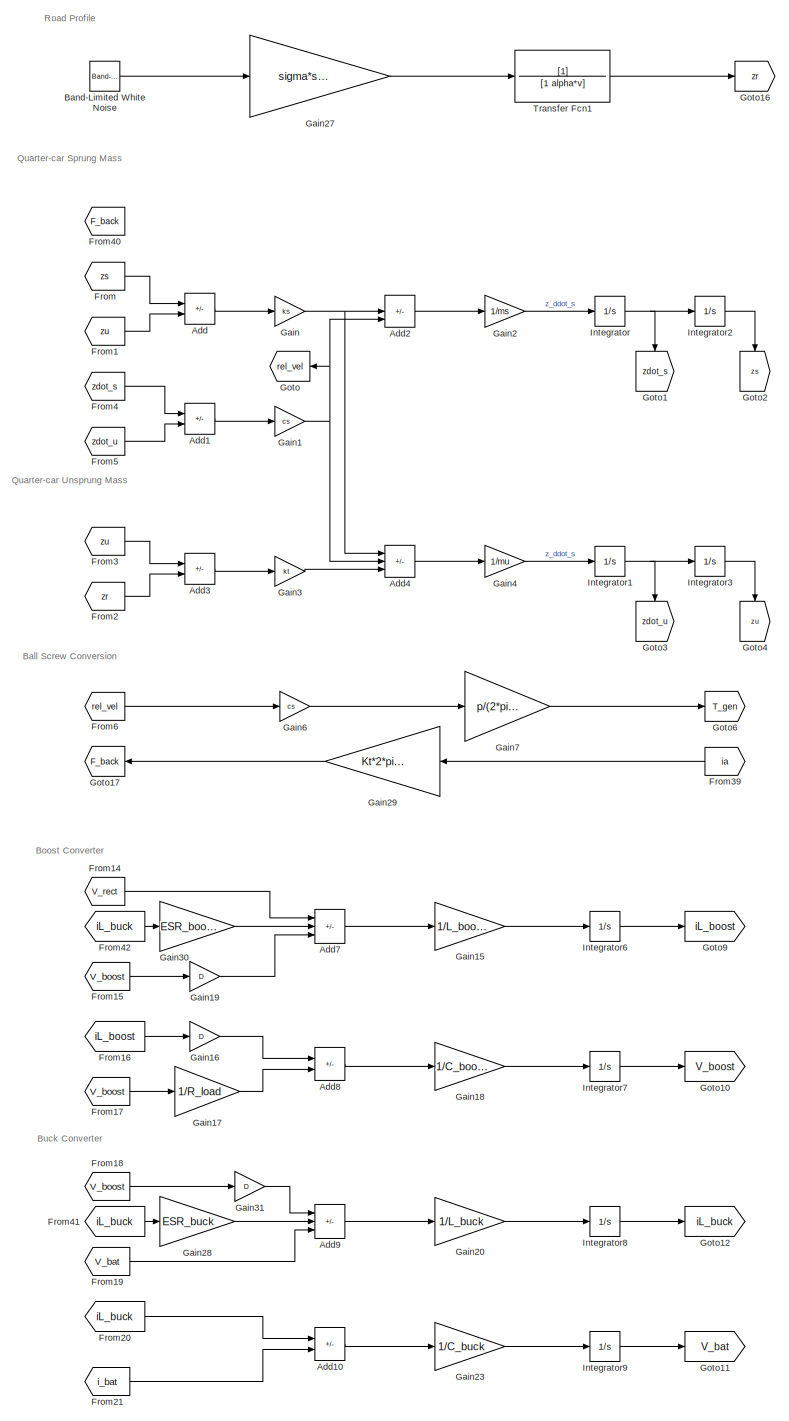
[diagram: root canvas - part 1/3, left side, full height]
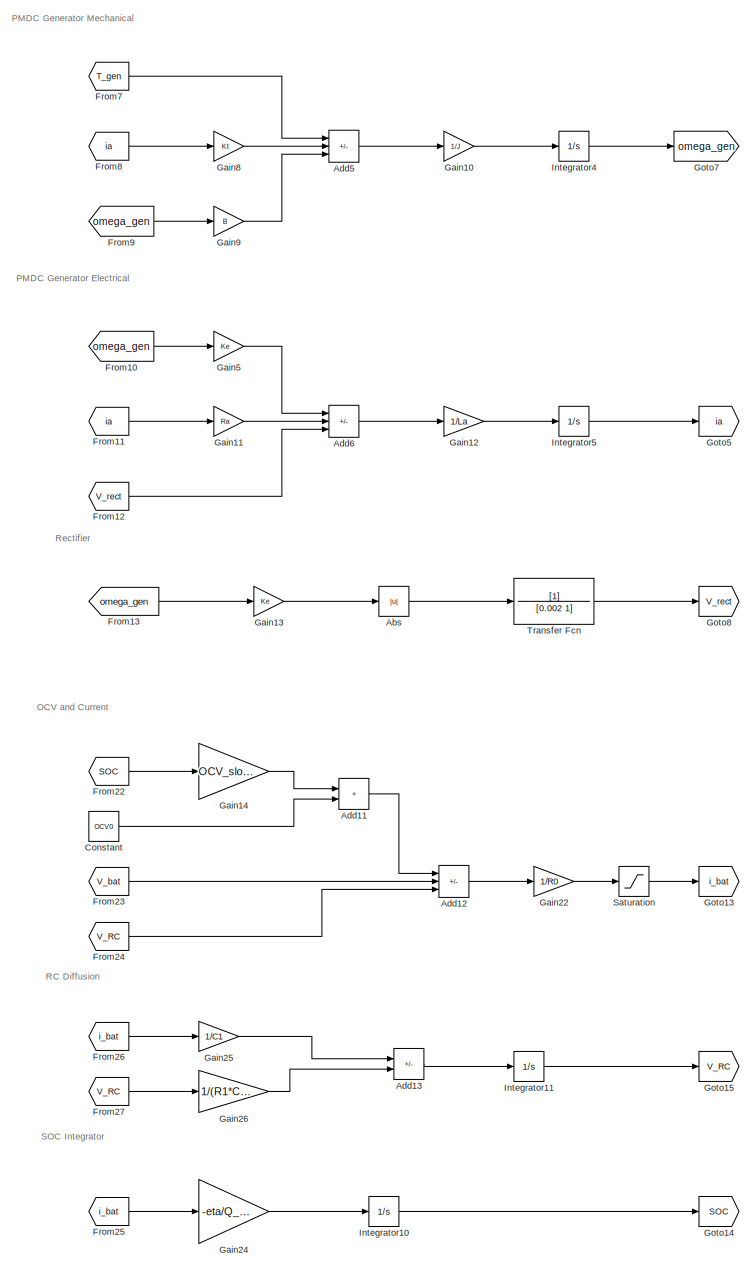
[diagram: root canvas - part 2/3, center side, full height]
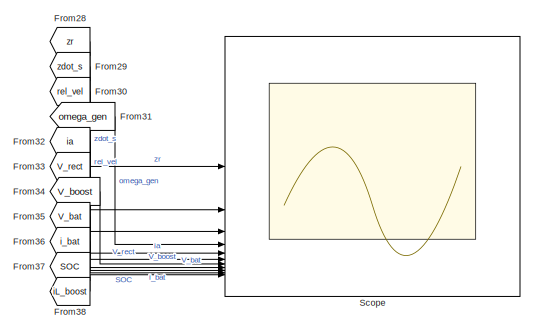
[diagram: root canvas - part 3/3, middle right region]
MODEL slx_e48aad3ebad0
KIND model
CONFIG AbsTol = 1e-6
CONFIG EnableMultiTasking = off
CONFIG FixedStep = auto
CONFIG MaxStep = auto
CONFIG MinStep = auto
CONFIG RelTol = 1e-3
CONFIG SampleTimeConstraint = Unconstrained
CONFIG SolverName = ode23tb
CONFIG StartTime = 0.0
CONFIG StopTime = 10
BLOCK [Abs] Abs
  SaturateOnIntegerOverflow = off
BLOCK [Sum] Add
  IconShape = rectangular
  Inputs = +-
BLOCK [Sum] Add1
  IconShape = rectangular
  Inputs = +-
BLOCK [Sum] Add10
  IconShape = rectangular
  Inputs = +-
BLOCK [Sum] Add11
  IconShape = rectangular
BLOCK [Sum] Add12
  IconShape = rectangular
  Inputs = +--
BLOCK [Sum] Add13
  IconShape = rectangular
  Inputs = +-
BLOCK [Sum] Add2
  IconShape = rectangular
  Inputs = +--
BLOCK [Sum] Add3
  IconShape = rectangular
  Inputs = +-
BLOCK [Sum] Add4
  IconShape = rectangular
  Inputs = ++-
BLOCK [Sum] Add5
  IconShape = rectangular
  Inputs = +--
BLOCK [Sum] Add6
  IconShape = rectangular
  Inputs = +--
BLOCK [Sum] Add7
  IconShape = rectangular
  Inputs = +--
BLOCK [Sum] Add8
  IconShape = rectangular
  Inputs = +-
BLOCK [Sum] Add9
  IconShape = rectangular
  Inputs = +--
BLOCK [Reference] Band-Limited White Noise  REF=simulink/Sources/Band-Limited
White Noise
  SourceBlock = simulink/Sources/Band-Limited\nWhite Noise
  SourceType = Band-Limited White Noise.
BLOCK [Constant] Constant
  Value = OCV0
BLOCK [From] From
  GotoTag = zs
BLOCK [From] From1
  GotoTag = zu
BLOCK [From] From10
  GotoTag = omega_gen
BLOCK [From] From11
  GotoTag = ia
BLOCK [From] From12
  GotoTag = V_rect
BLOCK [From] From13
  GotoTag = omega_gen
BLOCK [From] From14
  GotoTag = V_rect
BLOCK [From] From15
  GotoTag = V_boost
BLOCK [From] From16
  GotoTag = iL_boost
BLOCK [From] From17
  GotoTag = V_boost
BLOCK [From] From18
  GotoTag = V_boost
BLOCK [From] From19
  GotoTag = V_bat
BLOCK [From] From2
  GotoTag = zr
BLOCK [From] From20
  GotoTag = iL_buck
BLOCK [From] From21
  GotoTag = i_bat
BLOCK [From] From22
  GotoTag = SOC
BLOCK [From] From23
  GotoTag = V_bat
BLOCK [From] From24
  GotoTag = V_RC
BLOCK [From] From25
  GotoTag = i_bat
BLOCK [From] From26
  GotoTag = i_bat
BLOCK [From] From27
  GotoTag = V_RC
BLOCK [From] From28
  GotoTag = zr
  IconDisplay = Signal name
BLOCK [From] From29
  GotoTag = zdot_s
BLOCK [From] From3
  GotoTag = zu
BLOCK [From] From30
  GotoTag = rel_vel
BLOCK [From] From31
  GotoTag = omega_gen
BLOCK [From] From32
  GotoTag = ia
BLOCK [From] From33
  GotoTag = V_rect
BLOCK [From] From34
  GotoTag = V_boost
BLOCK [From] From35
  GotoTag = V_bat
BLOCK [From] From36
  GotoTag = i_bat
BLOCK [From] From37
  GotoTag = SOC
BLOCK [From] From38
  GotoTag = iL_boost
BLOCK [From] From39
  GotoTag = ia
  NameLocation = top
BLOCK [From] From4
  GotoTag = zdot_s
BLOCK [From] From40
  GotoTag = F_back
BLOCK [From] From41
  GotoTag = iL_buck
BLOCK [From] From42
  GotoTag = iL_buck
BLOCK [From] From5
  GotoTag = zdot_u
BLOCK [From] From6
  GotoTag = rel_vel
BLOCK [From] From7
  GotoTag = T_gen
BLOCK [From] From8
  GotoTag = ia
BLOCK [From] From9
  GotoTag = omega_gen
BLOCK [Gain] Gain
  Gain = ks
BLOCK [Gain] Gain1
  Gain = cs
BLOCK [Gain] Gain10
  Gain = 1/J
BLOCK [Gain] Gain11
  Gain = Ra
BLOCK [Gain] Gain12
  Gain = 1/La
BLOCK [Gain] Gain13
  Gain = Ke
BLOCK [Gain] Gain14
  Gain = OCV_slope
BLOCK [Gain] Gain15
  Gain = 1/L_boost
BLOCK [Gain] Gain16
  Gain = D
BLOCK [Gain] Gain17
  Gain = 1/R_load
BLOCK [Gain] Gain18
  Gain = 1/C_boost
BLOCK [Gain] Gain19
  Gain = D
BLOCK [Gain] Gain2
  Gain = 1/ms
BLOCK [Gain] Gain20
  Gain = 1/L_buck
BLOCK [Gain] Gain22
  Gain = 1/R0
BLOCK [Gain] Gain23
  Gain = 1/C_buck
BLOCK [Gain] Gain24
  Gain = -eta/Q_nom
BLOCK [Gain] Gain25
  Gain = 1/C1
BLOCK [Gain] Gain26
  Gain = 1/(R1*C1)
BLOCK [Gain] Gain27
  Gain = sigma*sqrt(2*alpha*v)
BLOCK [Gain] Gain28
  Gain = ESR_buck
BLOCK [Gain] Gain29
  Gain = Kt*2*pi/(p*eta_bs)
  NameLocation = top
BLOCK [Gain] Gain3
  Gain = kt
BLOCK [Gain] Gain30
  Gain = ESR_boost
BLOCK [Gain] Gain31
  Gain = D
BLOCK [Gain] Gain4
  Gain = 1/mu
BLOCK [Gain] Gain5
  Gain = Ke
BLOCK [Gain] Gain6
  Gain = cs
BLOCK [Gain] Gain7
  Gain = p/(2*pi*eta_bs)
BLOCK [Gain] Gain8
  Gain = Kt
BLOCK [Gain] Gain9
  Gain = B
BLOCK [Goto] Goto
  GotoTag = rel_vel
  NameLocation = top
BLOCK [Goto] Goto1
  GotoTag = zdot_s
  NameLocation = left
BLOCK [Goto] Goto10
  GotoTag = V_boost
BLOCK [Goto] Goto11
  GotoTag = V_bat
BLOCK [Goto] Goto12
  GotoTag = iL_buck
BLOCK [Goto] Goto13
  GotoTag = i_bat
BLOCK [Goto] Goto14
  GotoTag = SOC
BLOCK [Goto] Goto15
  GotoTag = V_RC
BLOCK [Goto] Goto16
  GotoTag = zr
BLOCK [Goto] Goto17
  GotoTag = F_back
  NameLocation = top
BLOCK [Goto] Goto2
  GotoTag = zs
  NameLocation = left
BLOCK [Goto] Goto3
  GotoTag = zdot_u
  NameLocation = left
BLOCK [Goto] Goto4
  GotoTag = zu
  NameLocation = left
BLOCK [Goto] Goto5
  GotoTag = ia
BLOCK [Goto] Goto6
  GotoTag = T_gen
BLOCK [Goto] Goto7
  GotoTag = omega_gen
BLOCK [Goto] Goto8
  GotoTag = V_rect
BLOCK [Goto] Goto9
  GotoTag = iL_boost
BLOCK [Integrator] Integrator
BLOCK [Integrator] Integrator1
BLOCK [Integrator] Integrator10
  InitialCondition = SOC0
  LowerSaturationLimit = 0
  UpperSaturationLimit = 1
BLOCK [Integrator] Integrator11
BLOCK [Integrator] Integrator2
BLOCK [Integrator] Integrator3
BLOCK [Integrator] Integrator4
BLOCK [Integrator] Integrator5
BLOCK [Integrator] Integrator6
BLOCK [Integrator] Integrator7
BLOCK [Integrator] Integrator8
  LowerSaturationLimit = 0
BLOCK [Integrator] Integrator9
  InitialCondition = v_bat_init
  UpperSaturationLimit = 1e9
BLOCK [Saturate] Saturation
  LowerLimit = -10
  UpperLimit = 50
BLOCK [Scope] Scope
  ActiveDisplayString = 9
  ActiveDisplayYMaximum = 57.5
  ActiveDisplayYMinimum = -17.5
  Floating = off
  GraphicalSettings = {"Style":{"BackgroundColor":[0.12941176470588237,0.12941176470588237,0.12941176470588237],"AxesColor":[0.07058823529411765,0.07058823529411765,0.07058823529411765],"LabelsColor":[0.8509803921568627,0.8509803921568627,0.8509803921568627],"PreserveColors":false,"Visible":[true,true,true,true,true,true,true,true,true,true,true],"LineStyle":["-","-","-","-","-","-","-","-","-","-","-"],"LineWidth":[1....<+6518ch>
  LayoutDimensionsString = [3,4]
  MultipleDisplayCache = [{"MaxYLimMag":0.0081811913368676978,"MaxYLimReal":0.0072856314950521658,"MinYLimMag":0,"MinYLimReal":-0.0081811913368676978,"PlotAsMagnitudePhase":false,"ShowGrid":true,"ShowLegend":true,"Title":"%<SignalLabel>","YLabel":""},{"MaxYLimMag":0.040133317084801834,"MaxYLimReal":0.035680974644287787,"MinYLimMag":0,"MinYLimReal":-0.040133317084801834,"PlotAsMagnitudePhase":false,"ShowGrid":true,"ShowLeg...<+2138ch>
  NumInputPorts = 11
  ScopeFrameLocation = window
  ShowLegend = on
  Visible = on
  WasSavedAsWebScope = on
  WindowPosition = [1.000000,49.000000,1920.000000,1009.000000,]
BLOCK [TransferFcn] Transfer Fcn
  Denominator = [0.002 1]
BLOCK [TransferFcn] Transfer Fcn1
  Denominator = [1 alpha*v]
ANNOTATION (root): Ball Screw Conversion
ANNOTATION (root): Boost Converter
ANNOTATION (root): Buck Converter
ANNOTATION (root): OCV and Current
ANNOTATION (root): PMDC Generator Electrical
ANNOTATION (root): PMDC Generator Mechanical
ANNOTATION (root): Quarter-car Sprung Mass
ANNOTATION (root): Quarter-car Unsprung Mass
ANNOTATION (root): RC Diffusion
ANNOTATION (root): Rectifier
ANNOTATION (root): Road Profile
ANNOTATION (root): SOC Integrator
LINE Abs:1 -> Transfer Fcn:1
LINE Add10:1 -> Gain23:1
LINE Add11:1 -> Add12:1
LINE Add12:1 -> Gain22:1
LINE Add13:1 -> Integrator11:1
LINE Add1:1 -> Gain1:1
LINE Add2:1 -> Gain2:1
LINE Add3:1 -> Gain3:1
LINE Add4:1 -> Gain4:1
LINE Add5:1 -> Gain10:1
LINE Add6:1 -> Gain12:1
LINE Add7:1 -> Gain15:1
LINE Add8:1 -> Gain18:1
LINE Add9:1 -> Gain20:1
LINE Add:1 -> Gain:1
LINE Band-Limited White Noise:1 -> Gain27:1
LINE Constant:1 -> Add11:2
LINE From10:1 -> Gain5:1
LINE From11:1 -> Gain11:1
LINE From12:1 -> Add6:3
LINE From13:1 -> Gain13:1
LINE From14:1 -> Add7:1
LINE From15:1 -> Gain19:1
LINE From16:1 -> Gain16:1
LINE From17:1 -> Gain17:1
LINE From18:1 -> Gain31:1
LINE From19:1 -> Add9:3
LINE From1:1 -> Add:2
LINE From20:1 -> Add10:1
LINE From21:1 -> Add10:2
LINE From22:1 -> Gain14:1
LINE From23:1 -> Add12:2
LINE From24:1 -> Add12:3
LINE From25:1 -> Gain24:1
LINE From26:1 -> Gain25:1
LINE From27:1 -> Gain26:1
LINE From28:1 -> Scope:1
LINE From29:1 -> Scope:2
LINE From2:1 -> Add3:2
LINE From30:1 -> Scope:3
LINE From31:1 -> Scope:4
LINE From32:1 -> Scope:5
LINE From33:1 -> Scope:6
LINE From34:1 -> Scope:7
LINE From35:1 -> Scope:8
LINE From36:1 -> Scope:9
LINE From37:1 -> Scope:10
LINE From38:1 -> Scope:11
LINE From39:1 -> Gain29:1
LINE From3:1 -> Add3:1
LINE From41:1 -> Gain28:1
LINE From42:1 -> Gain30:1
LINE From4:1 -> Add1:1
LINE From5:1 -> Add1:2
LINE From6:1 -> Gain6:1
LINE From7:1 -> Add5:1
LINE From8:1 -> Gain8:1
LINE From9:1 -> Gain9:1
LINE From:1 -> Add:1
LINE Gain10:1 -> Integrator4:1
LINE Gain11:1 -> Add6:2
LINE Gain12:1 -> Integrator5:1
LINE Gain13:1 -> Abs:1
LINE Gain14:1 -> Add11:1
LINE Gain15:1 -> Integrator6:1
LINE Gain16:1 -> Add8:1
LINE Gain17:1 -> Add8:2
LINE Gain18:1 -> Integrator7:1
LINE Gain19:1 -> Add7:3
NET Gain1:1 -> Add2:3, Add4:2, Goto:1
LINE Gain20:1 -> Integrator8:1
LINE Gain22:1 -> Saturation:1
LINE Gain23:1 -> Integrator9:1
LINE Gain24:1 -> Integrator10:1
LINE Gain25:1 -> Add13:1
LINE Gain26:1 -> Add13:2
LINE Gain27:1 -> Transfer Fcn1:1
LINE Gain28:1 -> Add9:2
LINE Gain29:1 -> Goto17:1
LINE Gain2:1 -> Integrator:1
LINE Gain30:1 -> Add7:2
LINE Gain31:1 -> Add9:1
LINE Gain3:1 -> Add4:3
LINE Gain4:1 -> Integrator1:1
LINE Gain5:1 -> Add6:1
LINE Gain6:1 -> Gain7:1
LINE Gain7:1 -> Goto6:1
LINE Gain8:1 -> Add5:2
LINE Gain9:1 -> Add5:3
NET Gain:1 -> Add2:2, Add4:1
LINE Integrator10:1 -> Goto14:1
LINE Integrator11:1 -> Goto15:1
NET Integrator1:1 -> Goto3:1, Integrator3:1
LINE Integrator2:1 -> Goto2:1
LINE Integrator3:1 -> Goto4:1
LINE Integrator4:1 -> Goto7:1
LINE Integrator5:1 -> Goto5:1
LINE Integrator6:1 -> Goto9:1
LINE Integrator7:1 -> Goto10:1
LINE Integrator8:1 -> Goto12:1
LINE Integrator9:1 -> Goto11:1
NET Integrator:1 -> Goto1:1, Integrator2:1
LINE Saturation:1 -> Goto13:1
LINE Transfer Fcn1:1 -> Goto16:1
LINE Transfer Fcn:1 -> Goto8:1
note: NET lines group one-source signal fan-out (src -> all destinations, sorted); 1:1 wires keep LINE
